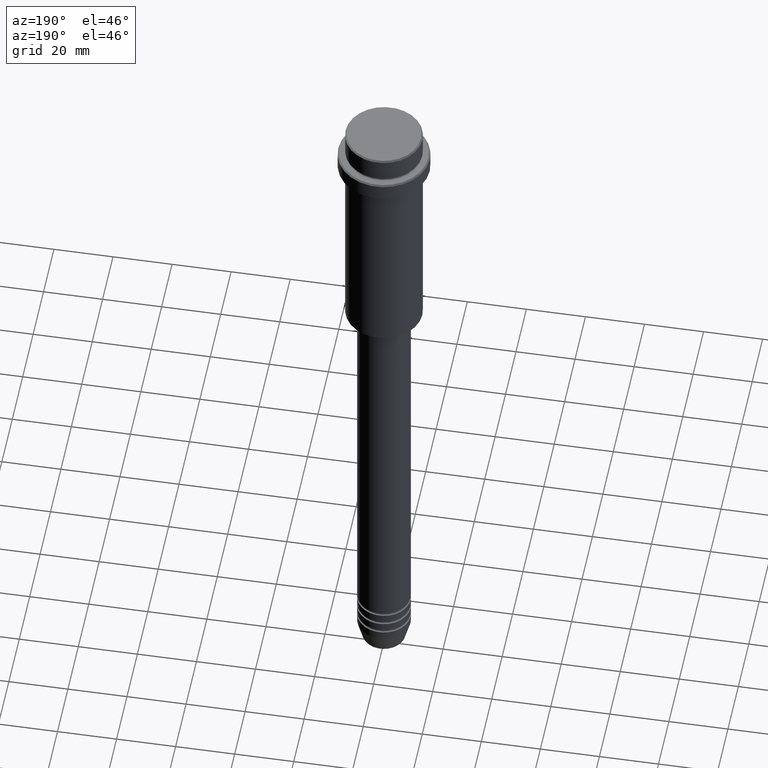
[diagram: clean part render]
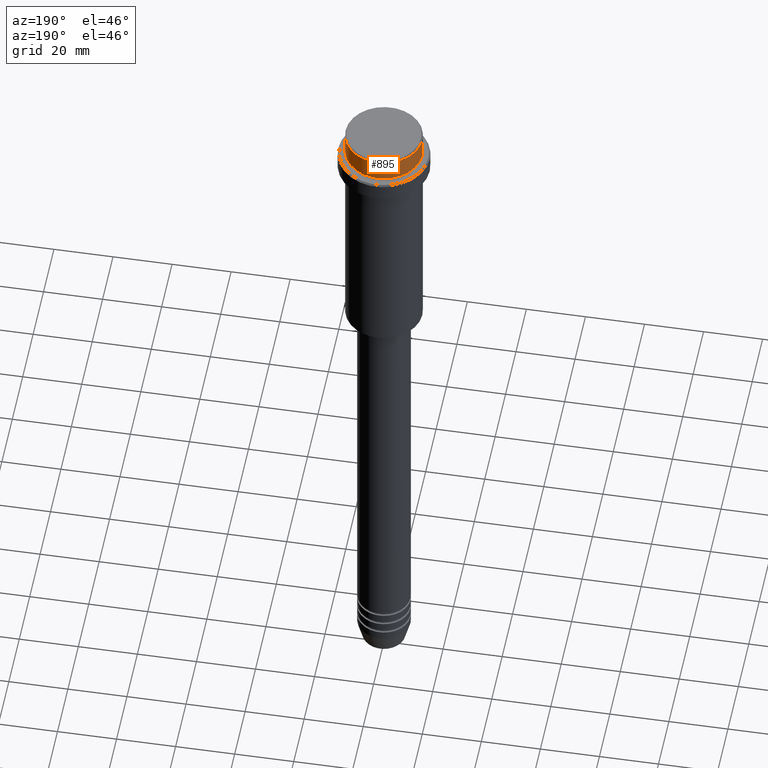
[diagram: same view with one face highlighted and labeled with its STEP entity id]
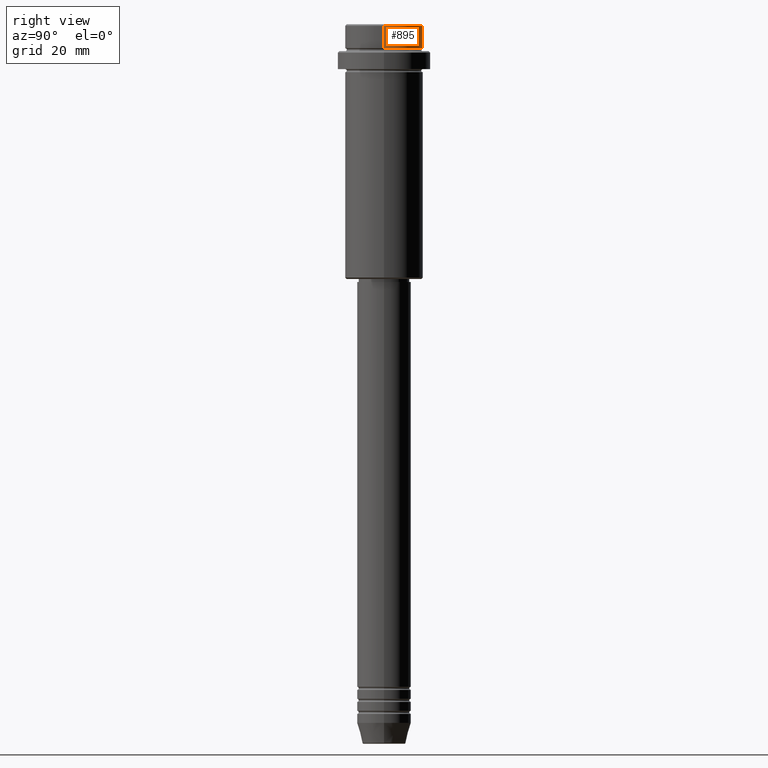
[diagram: same view with one face highlighted and labeled with its STEP entity id]
A machine part, auxiliary view. The second image highlights one B-rep face of the part: STEP entity #895.
A second angle (right view) of the same face is appended — the face is thin or edge-on in the first view.
In plain terms, the highlighted cylindrical surface (partial cylindrical patch) has radius 13 mm, axis along (-0, -0, 1).
Its self-contained STEP definition (entity closure, byte-faithful):
#9 = VERTEX_POINT ( 'NONE', #765 ) ;
#37 = AXIS2_PLACEMENT_3D ( 'NONE', #1296, #294, #753 ) ;
#93 = EDGE_CURVE ( 'NONE', #9, #1130, #231, .T. ) ;
#167 = CARTESIAN_POINT ( 'NONE',  ( 0.000000000000000000, 0.000000000000000000, -0.5000000000000038858 ) ) ;
#188 = DIRECTION ( 'NONE',  ( 1.000000000000000000, 0.000000000000000000, 0.000000000000000000 ) ) ;
#199 = AXIS2_PLACEMENT_3D ( 'NONE', #626, #1167, #188 ) ;
#230 = DIRECTION ( 'NONE',  ( 0.000000000000000000, 0.000000000000000000, -1.000000000000000000 ) ) ;
#231 = LINE ( 'NONE', #525, #1404 ) ;
#244 = AXIS2_PLACEMENT_3D ( 'NONE', #167, #230, #262 ) ;
#262 = DIRECTION ( 'NONE',  ( 1.000000000000000000, 0.000000000000000000, 0.000000000000000000 ) ) ;
#294 = DIRECTION ( 'NONE',  ( -0.000000000000000000, -0.000000000000000000, 1.000000000000000000 ) ) ;
#315 = EDGE_LOOP ( 'NONE', ( #1398, #721, #389, #341 ) ) ;
#341 = ORIENTED_EDGE ( 'NONE', *, *, #766, .F. ) ;
#389 = ORIENTED_EDGE ( 'NONE', *, *, #637, .T. ) ;
#393 = FACE_OUTER_BOUND ( 'NONE', #315, .T. ) ;
#517 = VECTOR ( 'NONE', #669, 1000.000000000000000 ) ;
#525 = CARTESIAN_POINT ( 'NONE',  ( -12.99999999999999822, 1.592040838891558898E-15, 0.000000000000000000 ) ) ;
#567 = CIRCLE ( 'NONE', #244, 12.99999999999999822 ) ;
#617 = CARTESIAN_POINT ( 'NONE',  ( 12.99999999999999822, 0.000000000000000000, -7.999999999999998224 ) ) ;
#626 = CARTESIAN_POINT ( 'NONE',  ( 0.000000000000000000, 0.000000000000000000, -7.999999999999998224 ) ) ;
#637 = EDGE_CURVE ( 'NONE', #1130, #963, #567, .T. ) ;
#654 = CIRCLE ( 'NONE', #199, 12.99999999999999822 ) ;
#669 = DIRECTION ( 'NONE',  ( -0.000000000000000000, -0.000000000000000000, 1.000000000000000000 ) ) ;
#721 = ORIENTED_EDGE ( 'NONE', *, *, #93, .T. ) ;
#753 = DIRECTION ( 'NONE',  ( 1.000000000000000000, 0.000000000000000000, 0.000000000000000000 ) ) ;
#765 = CARTESIAN_POINT ( 'NONE',  ( -12.99999999999999822, 1.592040838891558898E-15, -7.999999999999998224 ) ) ;
#766 = EDGE_CURVE ( 'NONE', #1263, #963, #1323, .T. ) ;
#895 = ADVANCED_FACE ( 'NONE', ( #393 ), #1178, .T. ) ;
#899 = EDGE_CURVE ( 'NONE', #1263, #9, #654, .T. ) ;
#913 = CARTESIAN_POINT ( 'NONE',  ( -12.99999999999999822, 1.592040838891558898E-15, -0.5000000000000038858 ) ) ;
#963 = VERTEX_POINT ( 'NONE', #1327 ) ;
#972 = DIRECTION ( 'NONE',  ( -0.000000000000000000, -0.000000000000000000, 1.000000000000000000 ) ) ;
#1130 = VERTEX_POINT ( 'NONE', #913 ) ;
#1167 = DIRECTION ( 'NONE',  ( -0.000000000000000000, -0.000000000000000000, 1.000000000000000000 ) ) ;
#1178 = CYLINDRICAL_SURFACE ( 'NONE', #37, 12.99999999999999822 ) ;
#1214 = CARTESIAN_POINT ( 'NONE',  ( 12.99999999999999822, 0.000000000000000000, 0.000000000000000000 ) ) ;
#1263 = VERTEX_POINT ( 'NONE', #617 ) ;
#1296 = CARTESIAN_POINT ( 'NONE',  ( 0.000000000000000000, 0.000000000000000000, 0.000000000000000000 ) ) ;
#1323 = LINE ( 'NONE', #1214, #517 ) ;
#1327 = CARTESIAN_POINT ( 'NONE',  ( 12.99999999999999822, 0.000000000000000000, -0.5000000000000038858 ) ) ;
#1398 = ORIENTED_EDGE ( 'NONE', *, *, #899, .T. ) ;
#1404 = VECTOR ( 'NONE', #972, 1000.000000000000000 ) ;